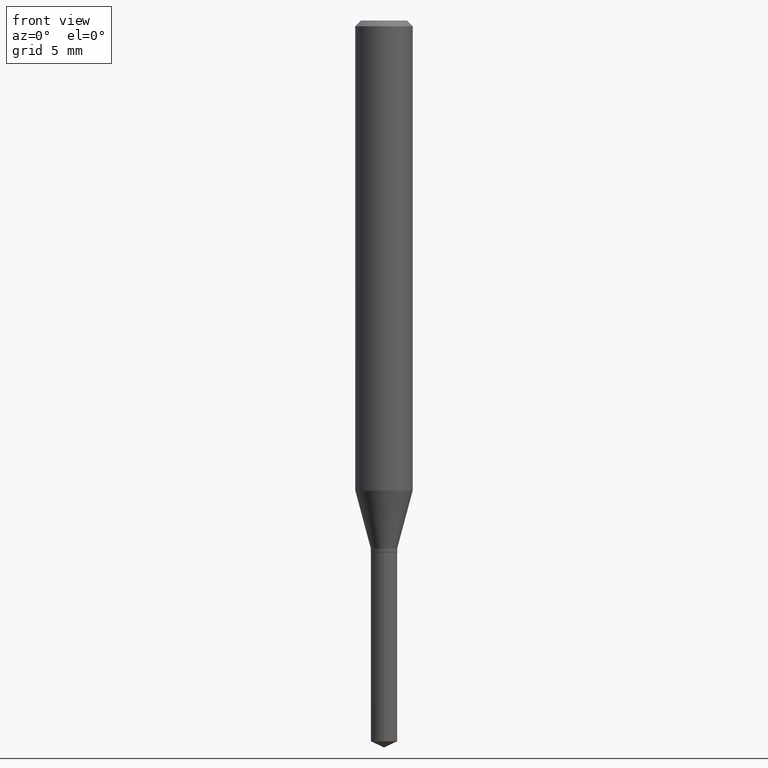
[diagram: clean part render]
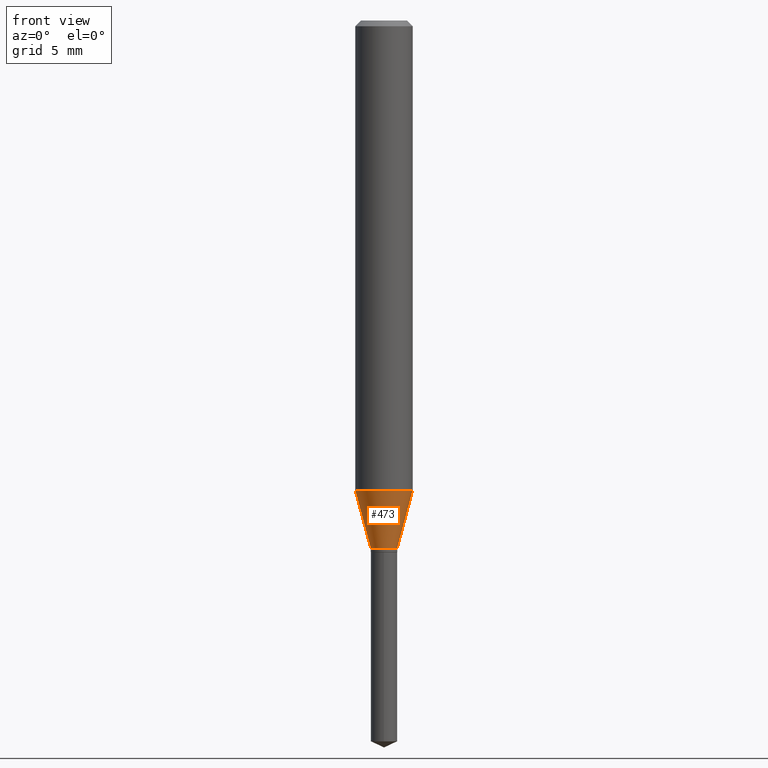
[diagram: same view with one face highlighted and labeled with its STEP entity id]
A machine part, front view. The second image highlights one B-rep face of the part: STEP entity #473.
In plain terms, the highlighted conical surface has half-angle 15 deg.
Its self-contained STEP definition (entity closure, byte-faithful):
#5 = CARTESIAN_POINT ( 'NONE',  ( 0.02715000000000000052, -3.982732763218375225E-15, -1.086399999999999810 ) ) ;
#21 = VECTOR ( 'NONE', #487, 39.37007874015747433 ) ;
#24 = EDGE_CURVE ( 'NONE', #164, #431, #451, .T. ) ;
#25 = LINE ( 'NONE', #334, #381 ) ;
#56 = ORIENTED_EDGE ( 'NONE', *, *, #445, .F. ) ;
#68 = CARTESIAN_POINT ( 'NONE',  ( -0.02715000000000000052, -3.613500602847929800E-15, -1.086399999999999810 ) ) ;
#78 = CIRCLE ( 'NONE', #96, 0.02715000000000000052 ) ;
#92 = EDGE_CURVE ( 'NONE', #174, #326, #25, .T. ) ;
#96 = AXIS2_PLACEMENT_3D ( 'NONE', #452, #107, #342 ) ;
#104 = DIRECTION ( 'NONE',  ( -2.445468806185136597E-29, 3.491481338843145583E-15, 1.000000000000000000 ) ) ;
#107 = DIRECTION ( 'NONE',  ( -2.445468806185136597E-29, 3.491481338843145583E-15, 1.000000000000000000 ) ) ;
#148 = CIRCLE ( 'NONE', #372, 0.05905000000000011628 ) ;
#164 = VERTEX_POINT ( 'NONE', #68 ) ;
#174 = VERTEX_POINT ( 'NONE', #5 ) ;
#189 = DIRECTION ( 'NONE',  ( 1.000000000000000000, -6.982962677686266711E-15, 0.000000000000000000 ) ) ;
#205 = ORIENTED_EDGE ( 'NONE', *, *, #92, .T. ) ;
#224 = DIRECTION ( 'NONE',  ( 1.000000000000000000, -6.982962677686262766E-15, 0.000000000000000000 ) ) ;
#231 = CARTESIAN_POINT ( 'NONE',  ( 2.656757311039532110E-29, -3.793145326519192838E-15, -1.086399999999999810 ) ) ;
#243 = AXIS2_PLACEMENT_3D ( 'NONE', #231, #104, #224 ) ;
#292 = CARTESIAN_POINT ( 'NONE',  ( -0.02715000000000000052, -3.600232973760325584E-15, -1.086399999999999810 ) ) ;
#307 = EDGE_LOOP ( 'NONE', ( #385, #438, #205, #56 ) ) ;
#326 = VERTEX_POINT ( 'NONE', #430 ) ;
#334 = CARTESIAN_POINT ( 'NONE',  ( 0.02715000000000000052, -3.982732763218375225E-15, -1.086399999999999810 ) ) ;
#335 = FACE_OUTER_BOUND ( 'NONE', #307, .T. ) ;
#342 = DIRECTION ( 'NONE',  ( 1.000000000000000000, -6.982962677686262766E-15, 0.000000000000000000 ) ) ;
#363 = DIRECTION ( 'NONE',  ( 0.2588190451025213501, 1.565188264969621968E-15, 0.9659258262890682012 ) ) ;
#365 = CONICAL_SURFACE ( 'NONE', #243, 0.02715000000000000052, 0.2617993877991500740 ) ;
#372 = AXIS2_PLACEMENT_3D ( 'NONE', #454, #449, #189 ) ;
#379 = CARTESIAN_POINT ( 'NONE',  ( -0.05905000000000011628, -2.957900535620157582E-15, -0.9673475792385526351 ) ) ;
#381 = VECTOR ( 'NONE', #363, 39.37007874015747433 ) ;
#385 = ORIENTED_EDGE ( 'NONE', *, *, #24, .F. ) ;
#396 = EDGE_CURVE ( 'NONE', #164, #174, #78, .T. ) ;
#430 = CARTESIAN_POINT ( 'NONE',  ( 0.05905000000000011628, -3.789819967203871995E-15, -0.9673475792385526351 ) ) ;
#431 = VERTEX_POINT ( 'NONE', #379 ) ;
#438 = ORIENTED_EDGE ( 'NONE', *, *, #396, .T. ) ;
#445 = EDGE_CURVE ( 'NONE', #431, #326, #148, .T. ) ;
#449 = DIRECTION ( 'NONE',  ( -2.445468806185136597E-29, 3.491481338843145583E-15, 1.000000000000000000 ) ) ;
#451 = LINE ( 'NONE', #292, #21 ) ;
#452 = CARTESIAN_POINT ( 'NONE',  ( 2.656757311039532110E-29, -3.793145326519192838E-15, -1.086399999999999810 ) ) ;
#454 = CARTESIAN_POINT ( 'NONE',  ( 2.365618329766585158E-29, -3.377476021086497075E-15, -0.9673475792385526351 ) ) ;
#473 = ADVANCED_FACE ( 'NONE', ( #335 ), #365, .T. ) ;
#487 = DIRECTION ( 'NONE',  ( -0.2588190451025213501, 5.211531920934551042E-15, 0.9659258262890682012 ) ) ;